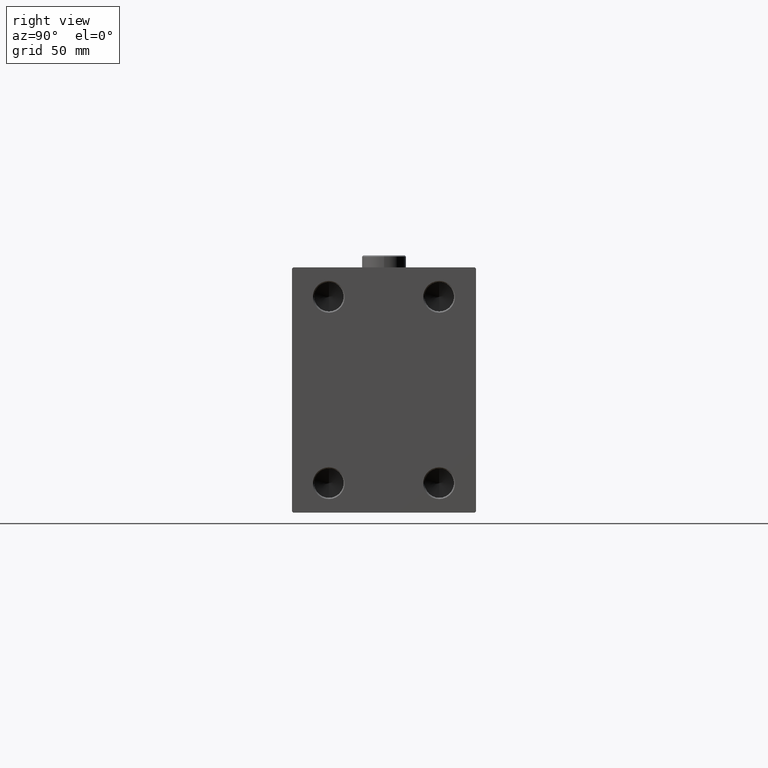
[diagram: clean part render]
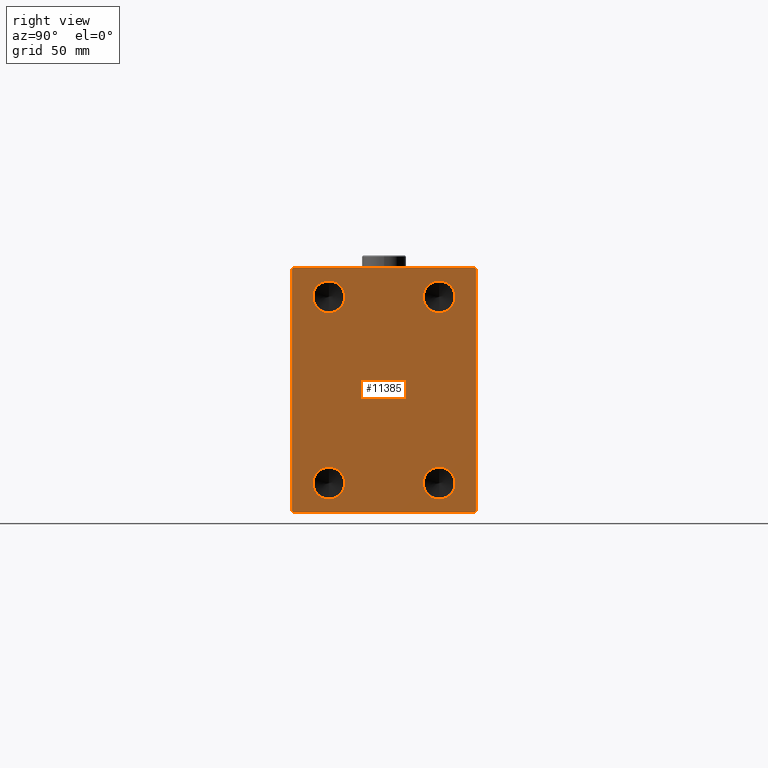
[diagram: same view with one face highlighted and labeled with its STEP entity id]
A machine part, right view. The second image highlights one B-rep face of the part: STEP entity #11385.
In plain terms, the highlighted planar face has unit normal (1, 0, 0).
Its self-contained STEP definition (entity closure, byte-faithful):
#996 = CARTESIAN_POINT ( 'NONE',  ( 173.0000000000000000, 22.50000000000000000, 44.49999999999997158 ) ) ;
#1069 = VERTEX_POINT ( 'NONE', #27562 ) ;
#1530 = AXIS2_PLACEMENT_3D ( 'NONE', #16935, #27013, #38779 ) ;
#1632 = VERTEX_POINT ( 'NONE', #47563 ) ;
#1953 = FACE_BOUND ( 'NONE', #18936, .T. ) ;
#2991 = LINE ( 'NONE', #32207, #18297 ) ;
#3097 = DIRECTION ( 'NONE',  ( 0.000000000000000000, 0.000000000000000000, -1.000000000000000000 ) ) ;
#3385 = VECTOR ( 'NONE', #27833, 1000.000000000000000 ) ;
#3996 = VERTEX_POINT ( 'NONE', #24786 ) ;
#5163 = FACE_BOUND ( 'NONE', #21016, .T. ) ;
#6309 = DIRECTION ( 'NONE',  ( 1.000000000000000000, -0.000000000000000000, -0.000000000000000000 ) ) ;
#7183 = VERTEX_POINT ( 'NONE', #45004 ) ;
#8435 = VERTEX_POINT ( 'NONE', #10035 ) ;
#8438 = VECTOR ( 'NONE', #17103, 1000.000000000000000 ) ;
#8508 = ORIENTED_EDGE ( 'NONE', *, *, #25272, .T. ) ;
#8554 = CARTESIAN_POINT ( 'NONE',  ( 173.0000000000000000, -37.50000000000000000, -50.00000000000000000 ) ) ;
#8686 = CIRCLE ( 'NONE', #28263, 6.499999999999977796 ) ;
#8816 = ORIENTED_EDGE ( 'NONE', *, *, #11627, .T. ) ;
#9069 = EDGE_CURVE ( 'NONE', #1069, #37086, #13036, .T. ) ;
#9162 = EDGE_CURVE ( 'NONE', #1632, #16813, #16736, .T. ) ;
#9862 = VERTEX_POINT ( 'NONE', #18552 ) ;
#9986 = ORIENTED_EDGE ( 'NONE', *, *, #18020, .F. ) ;
#10025 = ORIENTED_EDGE ( 'NONE', *, *, #28654, .F. ) ;
#10035 = CARTESIAN_POINT ( 'NONE',  ( 173.0000000000000000, 22.50000000000000000, 31.50000000000001421 ) ) ;
#10145 = ORIENTED_EDGE ( 'NONE', *, *, #28302, .T. ) ;
#10205 = DIRECTION ( 'NONE',  ( 0.000000000000000000, 0.000000000000000000, -1.000000000000000000 ) ) ;
#10420 = EDGE_CURVE ( 'NONE', #15134, #18490, #16386, .T. ) ;
#10672 = CARTESIAN_POINT ( 'NONE',  ( 173.0000000000000000, 43.50000000000027711, -43.49999999999968026 ) ) ;
#10690 = CARTESIAN_POINT ( 'NONE',  ( 173.0000000000000000, -22.50000000000000000, -38.00000000000000711 ) ) ;
#11166 = DIRECTION ( 'NONE',  ( 1.000000000000000000, -0.000000000000000000, -0.000000000000000000 ) ) ;
#11385 = ADVANCED_FACE ( 'NONE', ( #23581, #42703, #5163, #1953, #27966 ), #12516, .T. ) ;
#11627 = EDGE_CURVE ( 'NONE', #37086, #3996, #48057, .T. ) ;
#11751 = AXIS2_PLACEMENT_3D ( 'NONE', #33992, #11166, #47989 ) ;
#12516 = PLANE ( 'NONE',  #1530 ) ;
#12618 = EDGE_CURVE ( 'NONE', #21870, #32875, #32890, .T. ) ;
#12678 = AXIS2_PLACEMENT_3D ( 'NONE', #14842, #25883, #44777 ) ;
#13036 = LINE ( 'NONE', #35616, #21184 ) ;
#13269 = CARTESIAN_POINT ( 'NONE',  ( 173.0000000000000000, -43.50000000000076028, 43.49999999999894840 ) ) ;
#13513 = DIRECTION ( 'NONE',  ( 0.000000000000000000, -1.387778780781445676E-16, 1.000000000000000000 ) ) ;
#13966 = AXIS2_PLACEMENT_3D ( 'NONE', #43613, #6309, #40409 ) ;
#14842 = CARTESIAN_POINT ( 'NONE',  ( 173.0000000000000000, -22.50000000000000000, 37.99999999999999289 ) ) ;
#15134 = VERTEX_POINT ( 'NONE', #38572 ) ;
#16386 = LINE ( 'NONE', #31583, #42306 ) ;
#16736 = LINE ( 'NONE', #13269, #33706 ) ;
#16813 = VERTEX_POINT ( 'NONE', #31579 ) ;
#16935 = CARTESIAN_POINT ( 'NONE',  ( 173.0000000000000000, 0.000000000000000000, 0.000000000000000000 ) ) ;
#17042 = EDGE_LOOP ( 'NONE', ( #29498, #34989, #40292, #32105, #10145, #8508, #23961, #8816 ) ) ;
#17103 = DIRECTION ( 'NONE',  ( -0.000000000000000000, 0.7071067811865426878, 0.7071067811865524577 ) ) ;
#17189 = CARTESIAN_POINT ( 'NONE',  ( 173.0000000000000000, 22.50000000000000000, -31.49999999999994316 ) ) ;
#17209 = DIRECTION ( 'NONE',  ( 0.000000000000000000, -0.7071067811865328068, -0.7071067811865622277 ) ) ;
#17267 = DIRECTION ( 'NONE',  ( 0.000000000000000000, -1.000000000000000000, -2.775557561562891844E-16 ) ) ;
#18020 = EDGE_CURVE ( 'NONE', #9862, #7183, #18215, .T. ) ;
#18069 = DIRECTION ( 'NONE',  ( 1.000000000000000000, -0.000000000000000000, -0.000000000000000000 ) ) ;
#18084 = AXIS2_PLACEMENT_3D ( 'NONE', #26409, #44093, #3097 ) ;
#18215 = CIRCLE ( 'NONE', #43277, 6.500000000000061284 ) ;
#18297 = VECTOR ( 'NONE', #17267, 1000.000000000000000 ) ;
#18478 = CARTESIAN_POINT ( 'NONE',  ( 173.0000000000000000, -22.50000000000000000, 31.50000000000001421 ) ) ;
#18490 = VERTEX_POINT ( 'NONE', #47409 ) ;
#18552 = CARTESIAN_POINT ( 'NONE',  ( 173.0000000000000000, -22.50000000000000000, -44.50000000000006395 ) ) ;
#18726 = AXIS2_PLACEMENT_3D ( 'NONE', #36007, #44343, #33779 ) ;
#18936 = EDGE_LOOP ( 'NONE', ( #43514, #24828 ) ) ;
#19047 = CARTESIAN_POINT ( 'NONE',  ( 173.0000000000000000, 22.50000000000000000, -38.00000000000000711 ) ) ;
#20241 = LINE ( 'NONE', #46484, #3385 ) ;
#20327 = DIRECTION ( 'NONE',  ( 1.000000000000000000, -0.000000000000000000, -0.000000000000000000 ) ) ;
#21016 = EDGE_LOOP ( 'NONE', ( #10025, #9986 ) ) ;
#21184 = VECTOR ( 'NONE', #13513, 1000.000000000000000 ) ;
#21638 = VERTEX_POINT ( 'NONE', #18478 ) ;
#21870 = VERTEX_POINT ( 'NONE', #17189 ) ;
#23581 = FACE_BOUND ( 'NONE', #24305, .T. ) ;
#23844 = EDGE_CURVE ( 'NONE', #32875, #21870, #39455, .T. ) ;
#23961 = ORIENTED_EDGE ( 'NONE', *, *, #9069, .T. ) ;
#24305 = EDGE_LOOP ( 'NONE', ( #28897, #37448 ) ) ;
#24704 = LINE ( 'NONE', #10672, #8438 ) ;
#24786 = CARTESIAN_POINT ( 'NONE',  ( 173.0000000000000000, 37.00000000000002132, 50.00000000000000711 ) ) ;
#24828 = ORIENTED_EDGE ( 'NONE', *, *, #23844, .F. ) ;
#24889 = CARTESIAN_POINT ( 'NONE',  ( 173.0000000000000000, 37.49999999999999289, 49.50000000000002842 ) ) ;
#25272 = EDGE_CURVE ( 'NONE', #34299, #1069, #24704, .T. ) ;
#25864 = VECTOR ( 'NONE', #26892, 1000.000000000000000 ) ;
#25883 = DIRECTION ( 'NONE',  ( 1.000000000000000000, -0.000000000000000000, -0.000000000000000000 ) ) ;
#26409 = CARTESIAN_POINT ( 'NONE',  ( 173.0000000000000000, 22.50000000000000000, 37.99999999999999289 ) ) ;
#26892 = DIRECTION ( 'NONE',  ( -0.000000000000000000, -0.7071067811865426878, 0.7071067811865524577 ) ) ;
#27013 = DIRECTION ( 'NONE',  ( 1.000000000000000000, 0.000000000000000000, 0.000000000000000000 ) ) ;
#27335 = CIRCLE ( 'NONE', #18726, 6.500000000000061284 ) ;
#27562 = CARTESIAN_POINT ( 'NONE',  ( 173.0000000000000000, 37.50000000000000711, -49.50000000000002842 ) ) ;
#27833 = DIRECTION ( 'NONE',  ( 0.000000000000000000, 0.000000000000000000, -1.000000000000000000 ) ) ;
#27906 = DIRECTION ( 'NONE',  ( -0.000000000000000000, 0.7071067811865474617, -0.7071067811865474617 ) ) ;
#27966 = FACE_OUTER_BOUND ( 'NONE', #17042, .T. ) ;
#28263 = AXIS2_PLACEMENT_3D ( 'NONE', #46801, #20327, #35276 ) ;
#28302 = EDGE_CURVE ( 'NONE', #18490, #34299, #45878, .T. ) ;
#28374 = VERTEX_POINT ( 'NONE', #30654 ) ;
#28559 = EDGE_CURVE ( 'NONE', #8435, #33917, #39837, .T. ) ;
#28654 = EDGE_CURVE ( 'NONE', #7183, #9862, #27335, .T. ) ;
#28897 = ORIENTED_EDGE ( 'NONE', *, *, #36868, .F. ) ;
#29498 = ORIENTED_EDGE ( 'NONE', *, *, #43727, .T. ) ;
#30654 = CARTESIAN_POINT ( 'NONE',  ( 173.0000000000000000, -22.50000000000000000, 44.49999999999997158 ) ) ;
#31579 = CARTESIAN_POINT ( 'NONE',  ( 173.0000000000000000, -37.50000000000000000, 49.49999999999995737 ) ) ;
#31583 = CARTESIAN_POINT ( 'NONE',  ( 173.0000000000000000, -43.50000000000000711, -43.50000000000000711 ) ) ;
#31642 = AXIS2_PLACEMENT_3D ( 'NONE', #19047, #18069, #36941 ) ;
#32105 = ORIENTED_EDGE ( 'NONE', *, *, #10420, .T. ) ;
#32207 = CARTESIAN_POINT ( 'NONE',  ( 173.0000000000000000, 37.49999999999999289, 50.00000000000000711 ) ) ;
#32875 = VERTEX_POINT ( 'NONE', #45508 ) ;
#32890 = CIRCLE ( 'NONE', #11751, 6.500000000000061284 ) ;
#33431 = EDGE_CURVE ( 'NONE', #28374, #21638, #8686, .T. ) ;
#33587 = DIRECTION ( 'NONE',  ( 0.000000000000000000, 1.000000000000000000, 0.000000000000000000 ) ) ;
#33706 = VECTOR ( 'NONE', #17209, 1000.000000000000000 ) ;
#33779 = DIRECTION ( 'NONE',  ( 0.000000000000000000, 0.000000000000000000, -1.000000000000000000 ) ) ;
#33828 = CIRCLE ( 'NONE', #12678, 6.499999999999977796 ) ;
#33917 = VERTEX_POINT ( 'NONE', #996 ) ;
#33992 = CARTESIAN_POINT ( 'NONE',  ( 173.0000000000000000, 22.50000000000000000, -38.00000000000000711 ) ) ;
#34017 = ORIENTED_EDGE ( 'NONE', *, *, #39200, .F. ) ;
#34243 = CARTESIAN_POINT ( 'NONE',  ( 173.0000000000000000, 43.50000000000027001, 43.49999999999966604 ) ) ;
#34299 = VERTEX_POINT ( 'NONE', #39674 ) ;
#34367 = VECTOR ( 'NONE', #33587, 1000.000000000000000 ) ;
#34989 = ORIENTED_EDGE ( 'NONE', *, *, #9162, .T. ) ;
#35276 = DIRECTION ( 'NONE',  ( 0.000000000000000000, 0.000000000000000000, -1.000000000000000000 ) ) ;
#35616 = CARTESIAN_POINT ( 'NONE',  ( 173.0000000000000000, 37.50000000000000711, -50.00000000000000000 ) ) ;
#36007 = CARTESIAN_POINT ( 'NONE',  ( 173.0000000000000000, -22.50000000000000000, -38.00000000000000711 ) ) ;
#36868 = EDGE_CURVE ( 'NONE', #33917, #8435, #38467, .T. ) ;
#36941 = DIRECTION ( 'NONE',  ( 0.000000000000000000, 0.000000000000000000, -1.000000000000000000 ) ) ;
#37086 = VERTEX_POINT ( 'NONE', #24889 ) ;
#37448 = ORIENTED_EDGE ( 'NONE', *, *, #28559, .F. ) ;
#38467 = CIRCLE ( 'NONE', #18084, 6.499999999999977796 ) ;
#38572 = CARTESIAN_POINT ( 'NONE',  ( 173.0000000000000000, -37.50000000000000000, -49.49999999999997158 ) ) ;
#38779 = DIRECTION ( 'NONE',  ( 0.000000000000000000, 0.000000000000000000, -1.000000000000000000 ) ) ;
#39200 = EDGE_CURVE ( 'NONE', #21638, #28374, #33828, .T. ) ;
#39455 = CIRCLE ( 'NONE', #31642, 6.500000000000061284 ) ;
#39674 = CARTESIAN_POINT ( 'NONE',  ( 173.0000000000000000, 37.00000000000004263, -50.00000000000000000 ) ) ;
#39837 = CIRCLE ( 'NONE', #13966, 6.499999999999977796 ) ;
#40292 = ORIENTED_EDGE ( 'NONE', *, *, #43669, .T. ) ;
#40409 = DIRECTION ( 'NONE',  ( 0.000000000000000000, 0.000000000000000000, -1.000000000000000000 ) ) ;
#42306 = VECTOR ( 'NONE', #27906, 1000.000000000000114 ) ;
#42703 = FACE_BOUND ( 'NONE', #44844, .T. ) ;
#43277 = AXIS2_PLACEMENT_3D ( 'NONE', #10690, #47281, #10205 ) ;
#43514 = ORIENTED_EDGE ( 'NONE', *, *, #12618, .F. ) ;
#43613 = CARTESIAN_POINT ( 'NONE',  ( 173.0000000000000000, 22.50000000000000000, 37.99999999999999289 ) ) ;
#43669 = EDGE_CURVE ( 'NONE', #16813, #15134, #20241, .T. ) ;
#43727 = EDGE_CURVE ( 'NONE', #3996, #1632, #2991, .T. ) ;
#44093 = DIRECTION ( 'NONE',  ( 1.000000000000000000, -0.000000000000000000, -0.000000000000000000 ) ) ;
#44343 = DIRECTION ( 'NONE',  ( 1.000000000000000000, -0.000000000000000000, -0.000000000000000000 ) ) ;
#44777 = DIRECTION ( 'NONE',  ( 0.000000000000000000, 0.000000000000000000, -1.000000000000000000 ) ) ;
#44844 = EDGE_LOOP ( 'NONE', ( #45843, #34017 ) ) ;
#45004 = CARTESIAN_POINT ( 'NONE',  ( 173.0000000000000000, -22.50000000000000000, -31.49999999999994316 ) ) ;
#45508 = CARTESIAN_POINT ( 'NONE',  ( 173.0000000000000000, 22.50000000000000000, -44.50000000000006395 ) ) ;
#45843 = ORIENTED_EDGE ( 'NONE', *, *, #33431, .F. ) ;
#45878 = LINE ( 'NONE', #8554, #34367 ) ;
#46484 = CARTESIAN_POINT ( 'NONE',  ( 173.0000000000000000, -37.50000000000000000, 49.99999999999998579 ) ) ;
#46801 = CARTESIAN_POINT ( 'NONE',  ( 173.0000000000000000, -22.50000000000000000, 37.99999999999999289 ) ) ;
#47281 = DIRECTION ( 'NONE',  ( 1.000000000000000000, -0.000000000000000000, -0.000000000000000000 ) ) ;
#47409 = CARTESIAN_POINT ( 'NONE',  ( 173.0000000000000000, -37.00000000000000000, -50.00000000000000000 ) ) ;
#47563 = CARTESIAN_POINT ( 'NONE',  ( 173.0000000000000000, -36.99999999999999289, 49.99999999999998579 ) ) ;
#47989 = DIRECTION ( 'NONE',  ( 0.000000000000000000, 0.000000000000000000, -1.000000000000000000 ) ) ;
#48057 = LINE ( 'NONE', #34243, #25864 ) ;